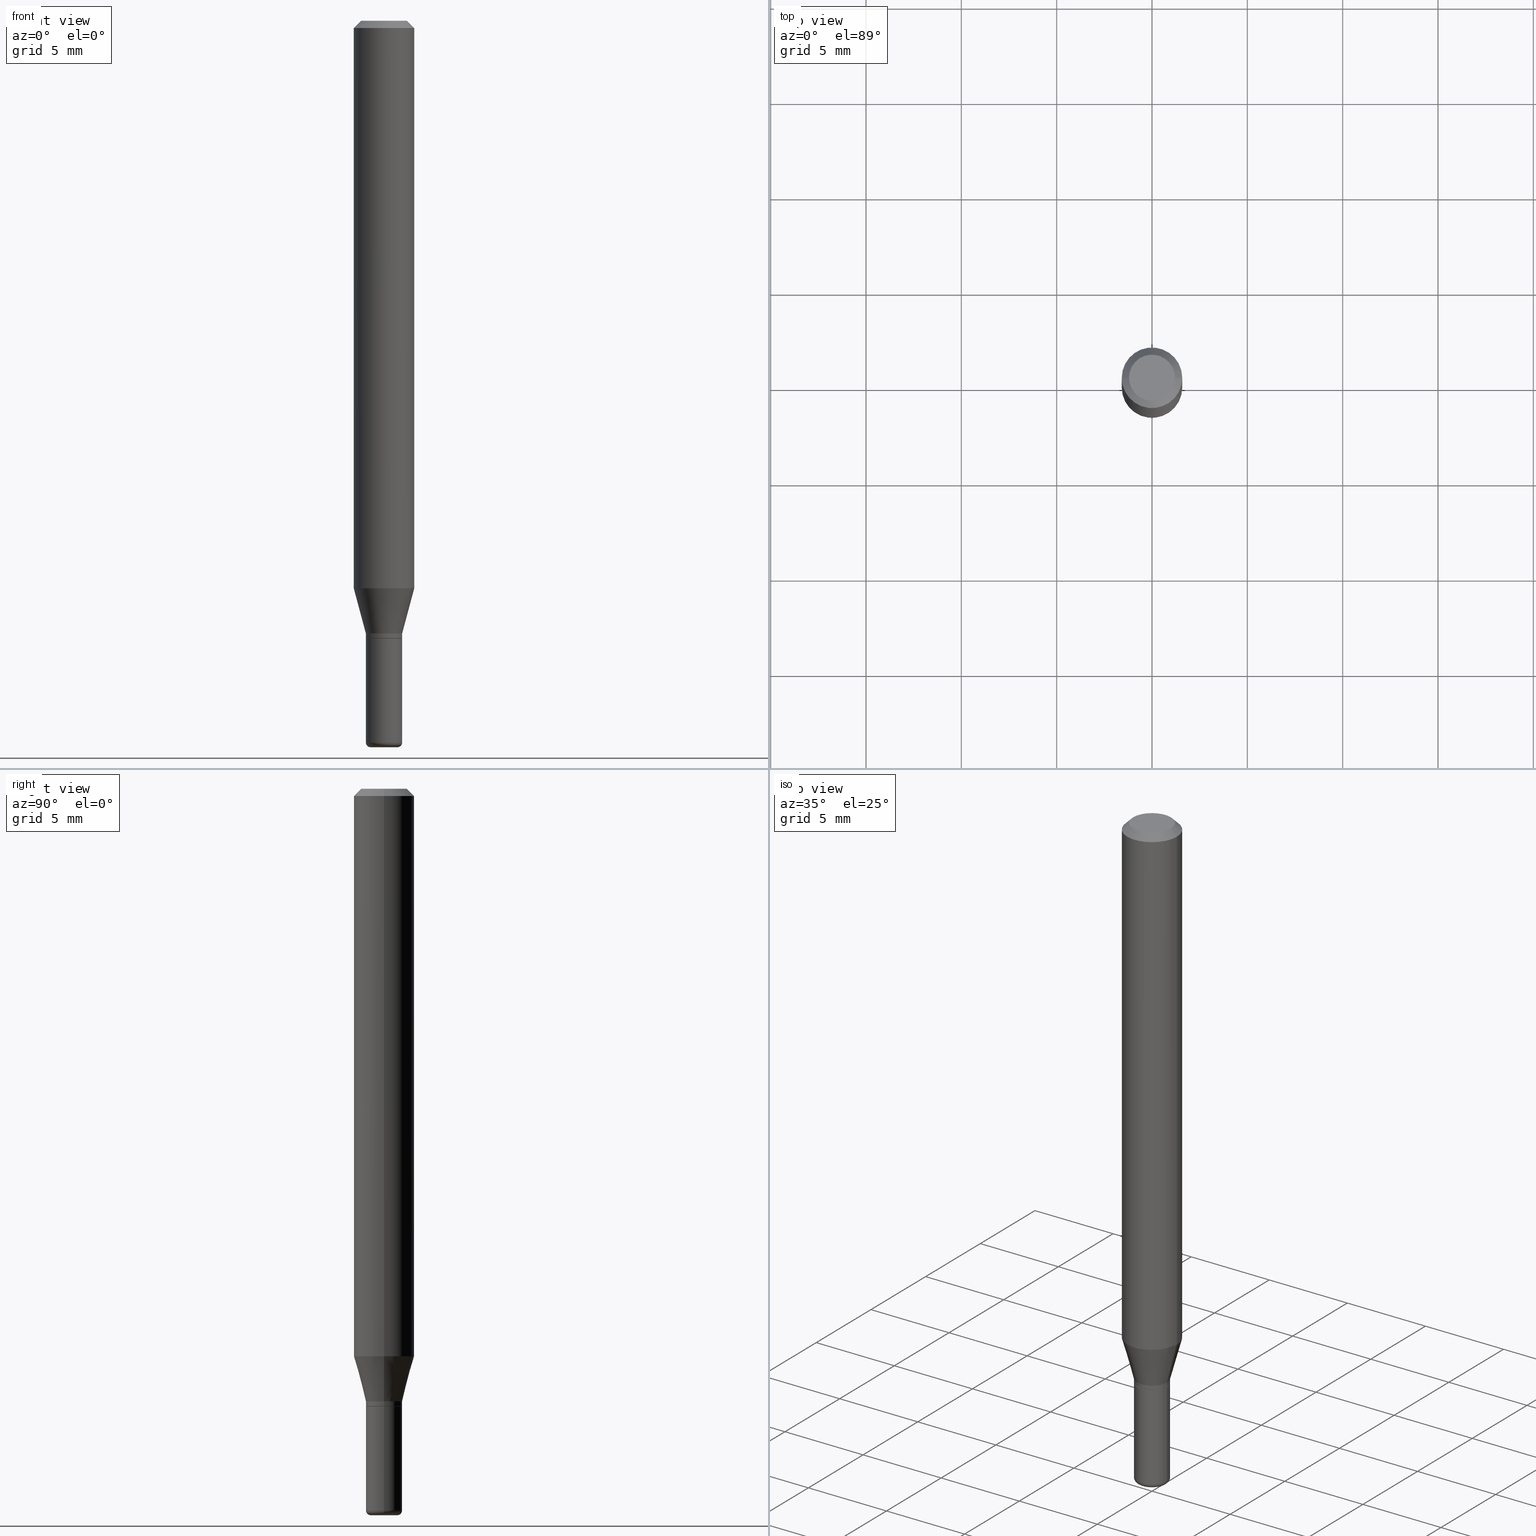
[diagram: canonical four-view strip — front | top / right | iso, engineering-drawing reading convention]
A machine part, canonical four-view strip (front | top / right | iso — engineering-drawing reading convention). The complete STEP part file that produces these views, byte-faithful:
ISO-10303-21;
HEADER;
FILE_DESCRIPTION (( 'STEP AP203' ),
    '1' );
FILE_NAME ('09179.STEP',
    '2024-02-29T23:03:01',
    ( '' ),
    ( '' ),
    'SwSTEP 2.0',
    'SolidWorks 2023',
    '' );
FILE_SCHEMA (( 'CONFIG_CONTROL_DESIGN' ));
ENDSEC;

DATA;
#1 = ORIENTED_EDGE ( 'NONE', *, *, #312, .T. ) ;
#2 = LINE ( 'NONE', #164, #67 ) ;
#3 = TOROIDAL_SURFACE ( 'NONE', #62, 0.02749999999999999667, 0.009999999999999948166 ) ;
#4 = CC_DESIGN_PERSON_AND_ORGANIZATION_ASSIGNMENT ( #388, #508, ( #225 ) ) ;
#5 = CARTESIAN_POINT ( 'NONE',  ( 3.668203209277632395E-31, -5.237222008264614861E-17, -0.01499999999999970281 ) ) ;
#6 = ORIENTED_EDGE ( 'NONE', *, *, #298, .F. ) ;
#7 = ORIENTED_EDGE ( 'NONE', *, *, #274, .F. ) ;
#8 = CARTESIAN_POINT ( 'NONE',  ( 0.03749999999999999861, -4.713499807438246596E-15, -1.275000000000000133 ) ) ;
#9 = DIRECTION ( 'NONE',  ( 1.000000000000000000, -6.982962677686259611E-15, 0.000000000000000000 ) ) ;
#10 = ORIENTED_EDGE ( 'NONE', *, *, #312, .F. ) ;
#11 = CARTESIAN_POINT ( 'NONE',  ( 0.000000000000000000, 0.000000000000000000, 0.000000000000000000 ) ) ;
#12 = EDGE_LOOP ( 'NONE', ( #493, #238, #466, #167 ) ) ;
#13 = EDGE_CURVE ( 'NONE', #273, #473, #270, .T. ) ;
#14 = CARTESIAN_POINT ( 'NONE',  ( 3.117972727886049049E-29, -4.451638707025011594E-15, -1.275000000000000133 ) ) ;
#15 = LINE ( 'NONE', #177, #276 ) ;
#16 = DIRECTION ( 'NONE',  ( 1.000000000000000000, -6.982962677686265922E-15, 4.876176775795935793E-29 ) ) ;
#17 = CONICAL_SURFACE ( 'NONE', #308, 0.03749999999999995698, 0.2617993877991495189 ) ;
#18 = DIRECTION ( 'NONE',  ( -2.445468806185136877E-29, 3.491481338843145188E-15, 1.000000000000000000 ) ) ;
#19 = EDGE_CURVE ( 'NONE', #349, #473, #350, .T. ) ;
#20 = CARTESIAN_POINT ( 'NONE',  ( 2.618611004132661617E-16, 0.03749999999999554384, -1.275000000000000133 ) ) ;
#21 = PERSON_AND_ORGANIZATION ( #490, #309 ) ;
#22 = DIRECTION ( 'NONE',  ( 2.438088387897960049E-29, -3.491481338843145188E-15, -1.000000000000000000 ) ) ;
#23 = CONICAL_SURFACE ( 'NONE', #460, 0.06250000000000000000, 0.7853981633974488341 ) ;
#24 = AXIS2_PLACEMENT_3D ( 'NONE', #123, #392, #440 ) ;
#25 = DIRECTION ( 'NONE',  ( -2.445468806185136597E-29, 3.491481338843145583E-15, 1.000000000000000000 ) ) ;
#26 = PERSON_AND_ORGANIZATION_ROLE ( 'design_supplier' ) ;
#27 = COORDINATED_UNIVERSAL_TIME_OFFSET ( 5, 0, .BEHIND. ) ;
#28 = FACE_OUTER_BOUND ( 'NONE', #278, .T. ) ;
#29 = ORIENTED_EDGE ( 'NONE', *, *, #373, .F. ) ;
#30 = CARTESIAN_POINT ( 'NONE',  ( -0.03749999999999997086, -4.183439440445552679E-15, -1.274500000000000188 ) ) ;
#31 = DIRECTION ( 'NONE',  ( 1.000000000000000000, -6.982962677686266711E-15, 4.876176775795935793E-29 ) ) ;
#32 = AXIS2_PLACEMENT_3D ( 'NONE', #327, #294, #424 ) ;
#33 = EDGE_LOOP ( 'NONE', ( #234, #319, #404, #93 ) ) ;
#34 = EDGE_CURVE ( 'NONE', #410, #451, #80, .T. ) ;
#35 = DIRECTION ( 'NONE',  ( 1.000000000000000000, -6.982962677686273810E-15, 0.000000000000000000 ) ) ;
#36 = DIRECTION ( 'NONE',  ( 1.000000000000000000, -6.982962677686276177E-15, 0.000000000000000000 ) ) ;
#37 = VERTEX_POINT ( 'NONE', #286 ) ;
#38 = CARTESIAN_POINT ( 'NONE',  ( 3.668203209277632395E-31, -5.237222008264614861E-17, -0.01499999999999970281 ) ) ;
#39 = LINE ( 'NONE', #515, #333 ) ;
#40 = EDGE_LOOP ( 'NONE', ( #174, #391, #109, #133 ) ) ;
#41 = ORIENTED_EDGE ( 'NONE', *, *, #352, .F. ) ;
#42 = CARTESIAN_POINT ( 'NONE',  ( -0.06250000000000000000, 4.440892098500626162E-16, -3.074334431409316114E-30 ) ) ;
#43 = ORIENTED_EDGE ( 'NONE', *, *, #90, .T. ) ;
#44 = CIRCLE ( 'NONE', #387, 0.03749999999999995698 ) ;
#45 = SHAPE_DEFINITION_REPRESENTATION ( #324, #182 ) ;
#46 = DIRECTION ( 'NONE',  ( 1.000000000000000000, -6.982962677686266711E-15, 0.000000000000000000 ) ) ;
#47 = CARTESIAN_POINT ( 'NONE',  ( 0.000000000000000000, 0.000000000000000000, 0.000000000000000000 ) ) ;
#48 = CARTESIAN_POINT ( 'NONE',  ( -6.680649051745406845E-45, 9.538196290434862081E-31, 2.731847993664263218E-16 ) ) ;
#49 = CLOSED_SHELL ( 'NONE', ( #100, #385, #111, #496, #130, #68, #192, #150, #439, #371, #405, #479 ) ) ;
#50 = CIRCLE ( 'NONE', #24, 0.009999999999999948166 ) ;
#51 = APPROVAL_PERSON_ORGANIZATION ( #21, #464, #268 ) ;
#52 = EDGE_CURVE ( 'NONE', #349, #511, #247, .T. ) ;
#53 = ORIENTED_EDGE ( 'NONE', *, *, #52, .T. ) ;
#54 = DIRECTION ( 'NONE',  ( -2.445468806185136597E-29, 3.491481338843145583E-15, 1.000000000000000000 ) ) ;
#55 = FACE_OUTER_BOUND ( 'NONE', #353, .T. ) ;
#56 = CYLINDRICAL_SURFACE ( 'NONE', #236, 0.06250000000000000000 ) ;
#57 = CARTESIAN_POINT ( 'NONE',  ( 0.000000000000000000, 0.000000000000000000, 0.000000000000000000 ) ) ;
#58 = EDGE_CURVE ( 'NONE', #363, #471, #509, .T. ) ;
#59 = DATE_AND_TIME ( #65, #340 ) ;
#60 = AXIS2_PLACEMENT_3D ( 'NONE', #303, #63, #229 ) ;
#61 = DIRECTION ( 'NONE',  ( -2.445468806185136597E-29, 3.491481338843145583E-15, 1.000000000000000000 ) ) ;
#62 = AXIS2_PLACEMENT_3D ( 'NONE', #499, #334, #291 ) ;
#63 = DIRECTION ( 'NONE',  ( -2.445468806185136597E-29, 3.491481338843145583E-15, 1.000000000000000000 ) ) ;
#64 = LOCAL_TIME ( 18, 3, 1.000000000000000000, #316 ) ;
#65 = CALENDAR_DATE ( 2024, 29, 2 ) ;
#66 = DIRECTION ( 'NONE',  ( 1.000000000000000000, -6.982962677686266711E-15, 4.852736867747365086E-29 ) ) ;
#67 = VECTOR ( 'NONE', #320, 39.37007874015748854 ) ;
#68 = ADVANCED_FACE ( 'NONE', ( #456 ), #282, .T. ) ;
#69 = DIRECTION ( 'NONE',  ( 1.000000000000000000, -6.982962677686266711E-15, 4.852736867747365086E-29 ) ) ;
#70 = APPROVAL_STATUS ( 'not_yet_approved' ) ;
#71 = DIRECTION ( 'NONE',  ( -2.445468806185136877E-29, 3.491481338843145188E-15, 1.000000000000000000 ) ) ;
#72 = VERTEX_POINT ( 'NONE', #383 ) ;
#73 = ORIENTED_EDGE ( 'NONE', *, *, #248, .T. ) ;
#74 = ADVANCED_FACE ( 'NONE', ( #502 ), #144, .F. ) ;
#75 = EDGE_LOOP ( 'NONE', ( #199, #323, #87, #447 ) ) ;
#76 = APPROVAL_PERSON_ORGANIZATION ( #187, #345, #459 ) ;
#77 = EDGE_LOOP ( 'NONE', ( #250, #73, #329, #136 ) ) ;
#78 = MANIFOLD_SOLID_BREP ( 'Body-Move/Copy2[2]', #49 ) ;
#79 = CARTESIAN_POINT ( 'NONE',  ( 0.03749999999999997086, -4.711754066768825092E-15, -1.274500000000000188 ) ) ;
#80 = LINE ( 'NONE', #348, #406 ) ;
#81 = ORIENTED_EDGE ( 'NONE', *, *, #34, .F. ) ;
#82 = CARTESIAN_POINT ( 'NONE',  ( 3.117972727886049049E-29, -4.451638707025011594E-15, -1.275000000000000133 ) ) ;
#83 = ORIENTED_EDGE ( 'NONE', *, *, #171, .F. ) ;
#84 = FACE_OUTER_BOUND ( 'NONE', #259, .T. ) ;
#85 = AXIS2_PLACEMENT_3D ( 'NONE', #246, #472, #437 ) ;
#86 = DIRECTION ( 'NONE',  ( 1.000000000000000000, -6.982962677686279332E-15, 0.000000000000000000 ) ) ;
#87 = ORIENTED_EDGE ( 'NONE', *, *, #240, .F. ) ;
#88 = DIRECTION ( 'NONE',  ( -2.438088387897960049E-29, 3.491481338843145188E-15, 1.000000000000000000 ) ) ;
#89 = ORIENTED_EDGE ( 'NONE', *, *, #185, .F. ) ;
#90 = EDGE_CURVE ( 'NONE', #367, #315, #126, .T. ) ;
#91 = FACE_OUTER_BOUND ( 'NONE', #193, .T. ) ;
#92 = EDGE_CURVE ( 'NONE', #486, #402, #342, .T. ) ;
#93 = ORIENTED_EDGE ( 'NONE', *, *, #184, .F. ) ;
#94 = AXIS2_PLACEMENT_3D ( 'NONE', #117, #393, #36 ) ;
#95 = CIRCLE ( 'NONE', #379, 0.06250000000000000000 ) ;
#96 = FACE_OUTER_BOUND ( 'NONE', #40, .T. ) ;
#97 = LINE ( 'NONE', #212, #427 ) ;
#98 = CARTESIAN_POINT ( 'NONE',  ( 0.03749999999999994310, -5.464168295289523107E-15, -1.490000000000000213 ) ) ;
#99 = DIRECTION ( 'NONE',  ( -1.000000000000000000, 6.982962677686265922E-15, -4.876176775795935793E-29 ) ) ;
#100 = ADVANCED_FACE ( 'NONE', ( #55 ), #220, .T. ) ;
#101 = PERSON_AND_ORGANIZATION ( #490, #309 ) ;
#102 = DIRECTION ( 'NONE',  ( -2.445468806185136597E-29, 3.491481338843145583E-15, 1.000000000000000000 ) ) ;
#103 = COORDINATED_UNIVERSAL_TIME_OFFSET ( 5, 0, .BEHIND. ) ;
#104 = AXIS2_PLACEMENT_3D ( 'NONE', #428, #482, #69 ) ;
#105 =( LENGTH_UNIT ( ) NAMED_UNIT ( * ) SI_UNIT ( $, .METRE. ) );
#106 = CC_DESIGN_PERSON_AND_ORGANIZATION_ASSIGNMENT ( #143, #299, ( #159 ) ) ;
#107 = COORDINATED_UNIVERSAL_TIME_OFFSET ( 5, 0, .BEHIND. ) ;
#108 = CIRCLE ( 'NONE', #400, 0.02750000000000000014 ) ;
#109 = ORIENTED_EDGE ( 'NONE', *, *, #13, .T. ) ;
#110 = FACE_OUTER_BOUND ( 'NONE', #355, .T. ) ;
#111 = ADVANCED_FACE ( 'NONE', ( #500 ), #23, .T. ) ;
#112 = VERTEX_POINT ( 'NONE', #417 ) ;
#113 = DIRECTION ( 'NONE',  ( -2.445468806185136597E-29, 3.491481338843145583E-15, 1.000000000000000000 ) ) ;
#114 = ORIENTED_EDGE ( 'NONE', *, *, #257, .F. ) ;
#115 = APPROVAL ( #70, 'UNSPECIFIED' ) ;
#116 = PLANE ( 'NONE',  #443 ) ;
#117 = CARTESIAN_POINT ( 'NONE',  ( 3.093518039824198064E-29, -4.416723893636579156E-15, -1.265000000000000124 ) ) ;
#118 = CIRCLE ( 'NONE', #104, 0.04750000000000000749 ) ;
#119 = SECURITY_CLASSIFICATION ( '', '', #189 ) ;
#120 = ORIENTED_EDGE ( 'NONE', *, *, #462, .T. ) ;
#121 = CARTESIAN_POINT ( 'NONE',  ( 0.03699999999999997041, -4.710008326099402800E-15, -1.275000000000000133 ) ) ;
#122 = DIRECTION ( 'NONE',  ( 1.000000000000000000, -6.982962677686272233E-15, 0.000000000000000000 ) ) ;
#123 = CARTESIAN_POINT ( 'NONE',  ( -0.02749999999999999667, -5.006907942542259986E-15, -1.490000000000000213 ) ) ;
#124 = VERTEX_POINT ( 'NONE', #30 ) ;
#125 = CARTESIAN_POINT ( 'NONE',  ( -0.03749999999999997086, 2.664535259100373626E-16, -1.844600658845588407E-30 ) ) ;
#126 = CIRCLE ( 'NONE', #418, 0.03699999999999997041 ) ;
#127 = CIRCLE ( 'NONE', #419, 0.03699999999999997041 ) ;
#128 = CARTESIAN_POINT ( 'NONE',  ( 0.03699999999999997041, -4.710008326099402800E-15, -1.275000000000000133 ) ) ;
#129 = ORIENTED_EDGE ( 'NONE', *, *, #298, .T. ) ;
#130 = ADVANCED_FACE ( 'NONE', ( #28 ), #17, .T. ) ;
#131 = DIMENSIONAL_EXPONENTS ( 1.000000000000000000, 0.000000000000000000, 0.000000000000000000, 0.000000000000000000, 0.000000000000000000, 0.000000000000000000, 0.000000000000000000 ) ;
#132 = CYLINDRICAL_SURFACE ( 'NONE', #231, 0.03749999999999997086 ) ;
#133 = ORIENTED_EDGE ( 'NONE', *, *, #19, .F. ) ;
#134 = CC_DESIGN_PERSON_AND_ORGANIZATION_ASSIGNMENT ( #101, #301, ( #343 ) ) ;
#135 = LINE ( 'NONE', #128, #512 ) ;
#136 = ORIENTED_EDGE ( 'NONE', *, *, #92, .F. ) ;
#137 = VECTOR ( 'NONE', #71, 39.37007874015748143 ) ;
#138 = AXIS2_PLACEMENT_3D ( 'NONE', #513, #244, #35 ) ;
#139 = CC_DESIGN_APPROVAL ( #115, ( #119 ) ) ;
#140 = CYLINDRICAL_SURFACE ( 'NONE', #444, 0.03749999999999996392 ) ;
#141 = CARTESIAN_POINT ( 'NONE',  ( 0.000000000000000000, 0.000000000000000000, 0.000000000000000000 ) ) ;
#142 = CARTESIAN_POINT ( 'NONE',  ( 3.668203209277632395E-31, -5.237222008264614861E-17, -0.01499999999999970281 ) ) ;
#143 = PERSON_AND_ORGANIZATION ( #490, #309 ) ;
#144 = PLANE ( 'NONE',  #186 ) ;
#145 = PERSON_AND_ORGANIZATION ( #490, #309 ) ;
#146 = AXIS2_PLACEMENT_3D ( 'NONE', #396, #200, #211 ) ;
#147 = EDGE_CURVE ( 'NONE', #37, #486, #275, .T. ) ;
#148 = COORDINATED_UNIVERSAL_TIME_OFFSET ( 5, 0, .BEHIND. ) ;
#149 = MECHANICAL_CONTEXT ( 'NONE', #206, 'mechanical' ) ;
#150 = ADVANCED_FACE ( 'NONE', ( #190 ), #235, .T. ) ;
#151 = VECTOR ( 'NONE', #281, 39.37007874015748143 ) ;
#152 = ORIENTED_EDGE ( 'NONE', *, *, #58, .T. ) ;
#153 = DIRECTION ( 'NONE',  ( 1.000000000000000000, -6.982962677686276177E-15, 0.000000000000000000 ) ) ;
#154 = DIRECTION ( 'NONE',  ( 1.000000000000000000, -6.982962677686266711E-15, 4.876176775795935793E-29 ) ) ;
#155 = EDGE_LOOP ( 'NONE', ( #484, #163, #310, #158 ) ) ;
#156 = ORIENTED_EDGE ( 'NONE', *, *, #290, .T. ) ;
#157 = CARTESIAN_POINT ( 'NONE',  ( -0.04750000000000000749, 3.578768372314221353E-16, 2.731847993664239060E-16 ) ) ;
#158 = ORIENTED_EDGE ( 'NONE', *, *, #330, .F. ) ;
#159 = PRODUCT ( '09179', '09179', '', ( #149 ) ) ;
#160 = DIRECTION ( 'NONE',  ( 2.445468806185136597E-29, -3.491481338843145583E-15, -1.000000000000000000 ) ) ;
#161 = DIRECTION ( 'NONE',  ( 1.000000000000000000, -6.982962677686265922E-15, 4.876176775795935793E-29 ) ) ;
#162 = AXIS2_PLACEMENT_3D ( 'NONE', #411, #217, #9 ) ;
#163 = ORIENTED_EDGE ( 'NONE', *, *, #19, .T. ) ;
#164 = CARTESIAN_POINT ( 'NONE',  ( 0.03749999999999995698, -4.678584994049814158E-15, -1.265000000000000124 ) ) ;
#165 = EDGE_CURVE ( 'NONE', #473, #410, #2, .T. ) ;
#166 = DIRECTION ( 'NONE',  ( 1.000000000000000000, -6.982962677686262766E-15, 0.000000000000000000 ) ) ;
#167 = ORIENTED_EDGE ( 'NONE', *, *, #352, .T. ) ;
#168 = FACE_OUTER_BOUND ( 'NONE', #468, .T. ) ;
#169 = CARTESIAN_POINT ( 'NONE',  ( 0.000000000000000000, 0.000000000000000000, 0.000000000000000000 ) ) ;
#170 = DIRECTION ( 'NONE',  ( -2.445468806185136597E-29, 3.491481338843145583E-15, 1.000000000000000000 ) ) ;
#171 = EDGE_CURVE ( 'NONE', #471, #363, #118, .T. ) ;
#172 = VECTOR ( 'NONE', #354, 39.37007874015748143 ) ;
#173 = FACE_OUTER_BOUND ( 'NONE', #33, .T. ) ;
#174 = ORIENTED_EDGE ( 'NONE', *, *, #503, .F. ) ;
#175 = DIRECTION ( 'NONE',  ( 1.000000000000000000, -6.982962677686278543E-15, 0.000000000000000000 ) ) ;
#176 = DIRECTION ( 'NONE',  ( 1.000000000000000000, -6.982962677686266711E-15, 4.876176775795935793E-29 ) ) ;
#177 = CARTESIAN_POINT ( 'NONE',  ( 0.06250000000000000000, -4.811533449433669144E-16, -0.01499999999999970281 ) ) ;
#178 =( GEOMETRIC_REPRESENTATION_CONTEXT ( 3 ) GLOBAL_UNCERTAINTY_ASSIGNED_CONTEXT ( ( #280 ) ) GLOBAL_UNIT_ASSIGNED_CONTEXT ( ( #421, #181, #266 ) ) REPRESENTATION_CONTEXT ( 'NONE', 'WORKASPACE' ) );
#179 = CARTESIAN_POINT ( 'NONE',  ( 3.643748521215853910E-29, -5.202307194876288105E-15, -1.490000000000000213 ) ) ;
#180 = DIRECTION ( 'NONE',  ( -2.445468806185136597E-29, 3.491481338843145583E-15, 1.000000000000000000 ) ) ;
#181 =( NAMED_UNIT ( * ) PLANE_ANGLE_UNIT ( ) SI_UNIT ( $, .RADIAN. ) );
#182 = ADVANCED_BREP_SHAPE_REPRESENTATION ( '09179', ( #422, #78, #461 ), #178 ) ;
#183 = PERSON_AND_ORGANIZATION ( #490, #309 ) ;
#184 = EDGE_CURVE ( 'NONE', #112, #402, #196, .T. ) ;
#185 = EDGE_CURVE ( 'NONE', #390, #486, #300, .T. ) ;
#186 = AXIS2_PLACEMENT_3D ( 'NONE', #20, #22, #99 ) ;
#187 = PERSON_AND_ORGANIZATION ( #490, #309 ) ;
#188 = AXIS2_PLACEMENT_3D ( 'NONE', #207, #361, #86 ) ;
#189 = SECURITY_CLASSIFICATION_LEVEL ( 'unclassified' ) ;
#190 = FACE_OUTER_BOUND ( 'NONE', #12, .T. ) ;
#191 = APPROVAL_ROLE ( '' ) ;
#192 = ADVANCED_FACE ( 'NONE', ( #110 ), #271, .T. ) ;
#193 = EDGE_LOOP ( 'NONE', ( #1, #389, #432, #434 ) ) ;
#194 = ORIENTED_EDGE ( 'NONE', *, *, #34, .T. ) ;
#195 = CALENDAR_DATE ( 2024, 29, 2 ) ;
#196 = CIRCLE ( 'NONE', #216, 0.03749999999999999861 ) ;
#197 = CIRCLE ( 'NONE', #510, 0.03749999999999997086 ) ;
#198 = ORIENTED_EDGE ( 'NONE', *, *, #213, .T. ) ;
#199 = ORIENTED_EDGE ( 'NONE', *, *, #448, .T. ) ;
#200 = DIRECTION ( 'NONE',  ( -2.445468806185136597E-29, 3.491481338843145583E-15, 1.000000000000000000 ) ) ;
#201 = ORIENTED_EDGE ( 'NONE', *, *, #165, .F. ) ;
#202 = APPROVAL_DATE_TIME ( #478, #115 ) ;
#203 = CARTESIAN_POINT ( 'NONE',  ( 2.865352693999004031E-29, -4.090964249880548061E-15, -1.171698729810777939 ) ) ;
#204 = EDGE_CURVE ( 'NONE', #492, #390, #50, .T. ) ;
#205 = EDGE_LOOP ( 'NONE', ( #83, #375, #441, #292 ) ) ;
#206 = APPLICATION_CONTEXT ( 'configuration controlled 3d designs of mechanical parts and assemblies' ) ;
#207 = CARTESIAN_POINT ( 'NONE',  ( 3.668203209277704895E-29, -5.237222008264718177E-15, -1.500000000000000222 ) ) ;
#208 = VECTOR ( 'NONE', #214, 39.37007874015748143 ) ;
#209 = LOCAL_TIME ( 18, 3, 1.000000000000000000, #107 ) ;
#210 = EDGE_LOOP ( 'NONE', ( #398, #43, #120, #7 ) ) ;
#211 = DIRECTION ( 'NONE',  ( 1.000000000000000000, -6.982962677686278543E-15, 4.883557194083116825E-29 ) ) ;
#212 = CARTESIAN_POINT ( 'NONE',  ( -0.03749999999999996392, 2.664535259100373133E-16, -1.844600658845587706E-30 ) ) ;
#213 = EDGE_CURVE ( 'NONE', #410, #511, #339, .T. ) ;
#214 = DIRECTION ( 'NONE',  ( -0.7071067811865479058, 2.468850131082261005E-15, -0.7071067811865471286 ) ) ;
#215 = CC_DESIGN_DATE_AND_TIME_ASSIGNMENT ( #337, #429, ( #119 ) ) ;
#216 = AXIS2_PLACEMENT_3D ( 'NONE', #232, #487, #251 ) ;
#217 = DIRECTION ( 'NONE',  ( -2.445468806185136597E-29, 3.491481338843145583E-15, 1.000000000000000000 ) ) ;
#218 = ORIENTED_EDGE ( 'NONE', *, *, #204, .F. ) ;
#219 = DIRECTION ( 'NONE',  ( -2.445468806185136597E-29, 3.491481338843145583E-15, 1.000000000000000000 ) ) ;
#220 = CYLINDRICAL_SURFACE ( 'NONE', #253, 0.03749999999999996392 ) ;
#221 = EDGE_CURVE ( 'NONE', #363, #72, #321, .T. ) ;
#222 = CARTESIAN_POINT ( 'NONE',  ( -0.03749999999999994310, -4.560519425040611649E-15, -1.490000000000000213 ) ) ;
#223 = CIRCLE ( 'NONE', #325, 0.03749999999999994310 ) ;
#224 = CALENDAR_DATE ( 2024, 29, 2 ) ;
#225 = PRODUCT_DEFINITION_FORMATION_WITH_SPECIFIED_SOURCE ( 'ANY', '', #159, .NOT_KNOWN. ) ;
#226 = DIRECTION ( 'NONE',  ( 1.000000000000000000, -6.982962677686259611E-15, 0.000000000000000000 ) ) ;
#227 = ADVANCED_FACE ( 'NONE', ( #168 ), #394, .F. ) ;
#228 = DIRECTION ( 'NONE',  ( 0.000000000000000000, 0.000000000000000000, 1.000000000000000000 ) ) ;
#229 = DIRECTION ( 'NONE',  ( 1.000000000000000000, -6.982962677686276177E-15, 0.000000000000000000 ) ) ;
#230 = APPROVAL_DATE_TIME ( #59, #464 ) ;
#231 = AXIS2_PLACEMENT_3D ( 'NONE', #11, #328, #176 ) ;
#232 = CARTESIAN_POINT ( 'NONE',  ( 3.117972727886049049E-29, -4.451638707025011594E-15, -1.275000000000000133 ) ) ;
#233 = DIRECTION ( 'NONE',  ( -2.445468806185136877E-29, 3.491481338843145188E-15, 1.000000000000000000 ) ) ;
#234 = ORIENTED_EDGE ( 'NONE', *, *, #248, .F. ) ;
#235 = CONICAL_SURFACE ( 'NONE', #498, 0.06250000000000000000, 0.7853981633974488341 ) ;
#236 = AXIS2_PLACEMENT_3D ( 'NONE', #169, #288, #454 ) ;
#237 = DIRECTION ( 'NONE',  ( 1.000000000000000000, -6.982962677686262766E-15, 0.000000000000000000 ) ) ;
#238 = ORIENTED_EDGE ( 'NONE', *, *, #58, .F. ) ;
#239 = DIRECTION ( 'NONE',  ( -6.982962677686266711E-15, -1.000000000000000000, 3.491481338843145583E-15 ) ) ;
#240 = EDGE_CURVE ( 'NONE', #273, #124, #489, .T. ) ;
#241 = DIRECTION ( 'NONE',  ( -0.7071067811866199593, 7.493145998870616062E-15, 0.7071067811864750752 ) ) ;
#242 = ADVANCED_FACE ( 'NONE', ( #84 ), #408, .T. ) ;
#243 = ORIENTED_EDGE ( 'NONE', *, *, #330, .T. ) ;
#244 = DIRECTION ( 'NONE',  ( -2.445468806185136597E-29, 3.491481338843145583E-15, 1.000000000000000000 ) ) ;
#245 = ORIENTED_EDGE ( 'NONE', *, *, #377, .F. ) ;
#246 = CARTESIAN_POINT ( 'NONE',  ( 3.668203209277632395E-31, -5.237222008264614861E-17, -0.01499999999999970281 ) ) ;
#247 = LINE ( 'NONE', #446, #338 ) ;
#248 = EDGE_CURVE ( 'NONE', #390, #112, #318, .T. ) ;
#249 = DIRECTION ( 'NONE',  ( -2.445468806185136597E-29, 3.491481338843145583E-15, 1.000000000000000000 ) ) ;
#250 = ORIENTED_EDGE ( 'NONE', *, *, #423, .T. ) ;
#251 = DIRECTION ( 'NONE',  ( 1.000000000000000000, -6.982962677686268288E-15, 0.000000000000000000 ) ) ;
#252 = FACE_OUTER_BOUND ( 'NONE', #495, .T. ) ;
#253 = AXIS2_PLACEMENT_3D ( 'NONE', #57, #180, #335 ) ;
#254 = AXIS2_PLACEMENT_3D ( 'NONE', #47, #401, #154 ) ;
#255 = LOCAL_TIME ( 18, 3, 1.000000000000000000, #103 ) ;
#256 = CARTESIAN_POINT ( 'NONE',  ( 3.093518039824198064E-29, -4.416723893636579156E-15, -1.265000000000000124 ) ) ;
#257 = EDGE_CURVE ( 'NONE', #451, #72, #477, .T. ) ;
#258 = APPLICATION_CONTEXT ( 'configuration controlled 3d designs of mechanical parts and assemblies' ) ;
#259 = EDGE_LOOP ( 'NONE', ( #218, #438, #313, #89 ) ) ;
#260 = CARTESIAN_POINT ( 'NONE',  ( -0.06250000000000000000, -3.646875040030485445E-15, -1.171698729810777939 ) ) ;
#261 = FACE_OUTER_BOUND ( 'NONE', #470, .T. ) ;
#262 = CARTESIAN_POINT ( 'NONE',  ( 3.117972727886049049E-29, -4.451638707025011594E-15, -1.275000000000000133 ) ) ;
#263 = DIRECTION ( 'NONE',  ( -1.000000000000000000, 6.982962677686266711E-15, 0.000000000000000000 ) ) ;
#264 = AXIS2_PLACEMENT_3D ( 'NONE', #82, #442, #433 ) ;
#265 = ADVANCED_FACE ( 'NONE', ( #311 ), #322, .T. ) ;
#266 =( NAMED_UNIT ( * ) SI_UNIT ( $, .STERADIAN. ) SOLID_ANGLE_UNIT ( ) );
#267 = DESIGN_CONTEXT ( 'detailed design', #258, 'design' ) ;
#268 = APPROVAL_ROLE ( '' ) ;
#269 = AXIS2_PLACEMENT_3D ( 'NONE', #384, #25, #31 ) ;
#270 = LINE ( 'NONE', #475, #137 ) ;
#271 = CYLINDRICAL_SURFACE ( 'NONE', #269, 0.06250000000000000000 ) ;
#272 = DIRECTION ( 'NONE',  ( 1.000000000000000000, -6.982962677686273810E-15, 0.000000000000000000 ) ) ;
#273 = VERTEX_POINT ( 'NONE', #79 ) ;
#274 = EDGE_CURVE ( 'NONE', #124, #273, #197, .T. ) ;
#275 = CIRCLE ( 'NONE', #293, 0.009999999999999948166 ) ;
#276 = VECTOR ( 'NONE', #364, 39.37007874015748143 ) ;
#277 = DIRECTION ( 'NONE',  ( -2.438088387897960049E-29, 3.491481338843145188E-15, 1.000000000000000000 ) ) ;
#278 = EDGE_LOOP ( 'NONE', ( #481, #53, #326, #201 ) ) ;
#279 = CARTESIAN_POINT ( 'NONE',  ( 3.117972727886049049E-29, -4.451638707025011594E-15, -1.275000000000000133 ) ) ;
#280 = UNCERTAINTY_MEASURE_WITH_UNIT (LENGTH_MEASURE( 1.000000000000000082E-05 ), #421, 'distance_accuracy_value', 'NONE');
#281 = DIRECTION ( 'NONE',  ( -2.445468806185136877E-29, 3.491481338843145188E-15, 1.000000000000000000 ) ) ;
#282 = CONICAL_SURFACE ( 'NONE', #60, 0.03749999999999995698, 0.2617993877991495189 ) ;
#283 = CONICAL_SURFACE ( 'NONE', #505, 0.03699999999999997041, 0.7853981633975507526 ) ;
#284 = CC_DESIGN_APPROVAL ( #464, ( #225 ) ) ;
#285 = ORIENTED_EDGE ( 'NONE', *, *, #184, .T. ) ;
#286 = CARTESIAN_POINT ( 'NONE',  ( 0.02750000000000000014, -5.429253481901091458E-15, -1.500000000000000222 ) ) ;
#287 = ORIENTED_EDGE ( 'NONE', *, *, #448, .F. ) ;
#288 = DIRECTION ( 'NONE',  ( -2.445468806185136597E-29, 3.491481338843145583E-15, 1.000000000000000000 ) ) ;
#289 = DIRECTION ( 'NONE',  ( 1.000000000000000000, -6.982962677686259611E-15, 0.000000000000000000 ) ) ;
#290 = EDGE_CURVE ( 'NONE', #402, #112, #317, .T. ) ;
#291 = DIRECTION ( 'NONE',  ( 1.000000000000000000, -6.982962677686278543E-15, 4.883557194083116825E-29 ) ) ;
#292 = ORIENTED_EDGE ( 'NONE', *, *, #221, .F. ) ;
#293 = AXIS2_PLACEMENT_3D ( 'NONE', #435, #239, #122 ) ;
#294 = DIRECTION ( 'NONE',  ( -2.445468806185136597E-29, 3.491481338843145583E-15, 1.000000000000000000 ) ) ;
#295 = DIRECTION ( 'NONE',  ( 1.000000000000000000, -6.982962677686266711E-15, 4.876176775795935793E-29 ) ) ;
#296 = CARTESIAN_POINT ( 'NONE',  ( 3.316907271900976589E-16, 0.04750000000000000749, -2.925296391183627249E-17 ) ) ;
#297 = DIRECTION ( 'NONE',  ( 2.445468806185136597E-29, -3.491481338843145583E-15, -1.000000000000000000 ) ) ;
#298 = EDGE_CURVE ( 'NONE', #511, #72, #480, .T. ) ;
#299 = PERSON_AND_ORGANIZATION_ROLE ( 'design_owner' ) ;
#300 = CIRCLE ( 'NONE', #32, 0.03749999999999994310 ) ;
#301 = PERSON_AND_ORGANIZATION_ROLE ( 'creator' ) ;
#302 = CALENDAR_DATE ( 2024, 29, 2 ) ;
#303 = CARTESIAN_POINT ( 'NONE',  ( 3.093518039824198064E-29, -4.416723893636579156E-15, -1.265000000000000124 ) ) ;
#304 = PERSON_AND_ORGANIZATION ( #490, #309 ) ;
#305 = EDGE_CURVE ( 'NONE', #367, #124, #39, .T. ) ;
#306 = EDGE_LOOP ( 'NONE', ( #287, #431 ) ) ;
#307 = AXIS2_PLACEMENT_3D ( 'NONE', #48, #370, #66 ) ;
#308 = AXIS2_PLACEMENT_3D ( 'NONE', #469, #347, #153 ) ;
#309 = ORGANIZATION ( 'UNSPECIFIED', 'UNSPECIFIED', '' ) ;
#310 = ORIENTED_EDGE ( 'NONE', *, *, #165, .T. ) ;
#311 = FACE_OUTER_BOUND ( 'NONE', #77, .T. ) ;
#312 = EDGE_CURVE ( 'NONE', #37, #492, #426, .T. ) ;
#313 = ORIENTED_EDGE ( 'NONE', *, *, #147, .T. ) ;
#314 = DIRECTION ( 'NONE',  ( -2.445468806185136597E-29, 3.491481338843145583E-15, 1.000000000000000000 ) ) ;
#315 = VERTEX_POINT ( 'NONE', #121 ) ;
#316 = COORDINATED_UNIVERSAL_TIME_OFFSET ( 5, 0, .BEHIND. ) ;
#317 = CIRCLE ( 'NONE', #264, 0.03749999999999999861 ) ;
#318 = LINE ( 'NONE', #125, #151 ) ;
#319 = ORIENTED_EDGE ( 'NONE', *, *, #185, .T. ) ;
#320 = DIRECTION ( 'NONE',  ( 0.2588190451025207950, 1.565188264969625912E-15, 0.9659258262890682012 ) ) ;
#321 = LINE ( 'NONE', #483, #208 ) ;
#322 = CYLINDRICAL_SURFACE ( 'NONE', #254, 0.03749999999999997086 ) ;
#323 = ORIENTED_EDGE ( 'NONE', *, *, #305, .T. ) ;
#324 = PRODUCT_DEFINITION_SHAPE ( 'NONE', 'NONE',  #343 ) ;
#325 = AXIS2_PLACEMENT_3D ( 'NONE', #179, #450, #175 ) ;
#326 = ORIENTED_EDGE ( 'NONE', *, *, #213, .F. ) ;
#327 = CARTESIAN_POINT ( 'NONE',  ( 3.643748521215853910E-29, -5.202307194876288105E-15, -1.490000000000000213 ) ) ;
#328 = DIRECTION ( 'NONE',  ( -2.445468806185136597E-29, 3.491481338843145583E-15, 1.000000000000000000 ) ) ;
#329 = ORIENTED_EDGE ( 'NONE', *, *, #290, .F. ) ;
#330 = EDGE_CURVE ( 'NONE', #511, #410, #95, .T. ) ;
#331 = DIRECTION ( 'NONE',  ( -1.000000000000000000, 6.982962677686265922E-15, -4.876176775795935793E-29 ) ) ;
#332 = CARTESIAN_POINT ( 'NONE',  ( 0.04750000000000000749, -4.035134999187568762E-16, 2.731847993664288856E-16 ) ) ;
#333 = VECTOR ( 'NONE', #241, 39.37007874015748143 ) ;
#334 = DIRECTION ( 'NONE',  ( -2.445468806185136597E-29, 3.491481338843145583E-15, 1.000000000000000000 ) ) ;
#335 = DIRECTION ( 'NONE',  ( 1.000000000000000000, -6.982962677686266711E-15, 4.876176775795935793E-29 ) ) ;
#336 = CC_DESIGN_PERSON_AND_ORGANIZATION_ASSIGNMENT ( #304, #465, ( #119 ) ) ;
#337 = DATE_AND_TIME ( #224, #209 ) ;
#338 = VECTOR ( 'NONE', #366, 39.37007874015748854 ) ;
#339 = CIRCLE ( 'NONE', #359, 0.06250000000000000000 ) ;
#340 = LOCAL_TIME ( 18, 3, 1.000000000000000000, #27 ) ;
#341 = APPROVAL_STATUS ( 'not_yet_approved' ) ;
#342 = LINE ( 'NONE', #412, #488 ) ;
#343 = PRODUCT_DEFINITION ( 'UNKNOWN', '', #225, #267 ) ;
#344 = DATE_TIME_ROLE ( 'creation_date' ) ;
#345 = APPROVAL ( #341, 'UNSPECIFIED' ) ;
#346 = APPROVAL_STATUS ( 'not_yet_approved' ) ;
#347 = DIRECTION ( 'NONE',  ( -2.445468806185136597E-29, 3.491481338843145583E-15, 1.000000000000000000 ) ) ;
#348 = CARTESIAN_POINT ( 'NONE',  ( 0.06250000000000000000, -4.364351673553916694E-16, 3.047610484872459871E-30 ) ) ;
#349 = VERTEX_POINT ( 'NONE', #356 ) ;
#350 = CIRCLE ( 'NONE', #94, 0.03749999999999995698 ) ;
#351 = AXIS2_PLACEMENT_3D ( 'NONE', #296, #374, #331 ) ;
#352 = EDGE_CURVE ( 'NONE', #72, #451, #453, .T. ) ;
#353 = EDGE_LOOP ( 'NONE', ( #476, #514, #29, #517 ) ) ;
#354 = DIRECTION ( 'NONE',  ( -2.445468806185136877E-29, 3.491481338843145188E-15, 1.000000000000000000 ) ) ;
#355 = EDGE_LOOP ( 'NONE', ( #6, #243, #194, #41 ) ) ;
#356 = CARTESIAN_POINT ( 'NONE',  ( -0.03749999999999995698, -3.898572703878513594E-15, -1.265000000000000124 ) ) ;
#357 = ORIENTED_EDGE ( 'NONE', *, *, #171, .T. ) ;
#358 = DIRECTION ( 'NONE',  ( -1.000000000000000000, 6.982962677686266711E-15, 0.000000000000000000 ) ) ;
#359 = AXIS2_PLACEMENT_3D ( 'NONE', #518, #113, #166 ) ;
#360 = CC_DESIGN_APPROVAL ( #345, ( #343 ) ) ;
#361 = DIRECTION ( 'NONE',  ( -2.445468806185136597E-29, 3.491481338843145583E-15, 1.000000000000000000 ) ) ;
#362 = DIRECTION ( 'NONE',  ( -2.445468806185136597E-29, 3.491481338843145583E-15, 1.000000000000000000 ) ) ;
#363 = VERTEX_POINT ( 'NONE', #157 ) ;
#364 = DIRECTION ( 'NONE',  ( 0.7071067811865479058, -7.319954787623257623E-15, -0.7071067811865471286 ) ) ;
#365 = CARTESIAN_POINT ( 'NONE',  ( 3.668203209277704895E-29, -5.237222008264718177E-15, -1.500000000000000222 ) ) ;
#366 = DIRECTION ( 'NONE',  ( -0.2588190451025207950, 5.211531920934546309E-15, 0.9659258262890682012 ) ) ;
#367 = VERTEX_POINT ( 'NONE', #403 ) ;
#368 = FACE_OUTER_BOUND ( 'NONE', #75, .T. ) ;
#369 = AXIS2_PLACEMENT_3D ( 'NONE', #445, #277, #161 ) ;
#370 = DIRECTION ( 'NONE',  ( -2.445468806185136597E-29, 3.491481338843145583E-15, 1.000000000000000000 ) ) ;
#371 = ADVANCED_FACE ( 'NONE', ( #474 ), #116, .F. ) ;
#372 = LOCAL_TIME ( 18, 3, 1.000000000000000000, #148 ) ;
#373 = EDGE_CURVE ( 'NONE', #473, #349, #44, .T. ) ;
#374 = DIRECTION ( 'NONE',  ( 2.438088387897960049E-29, -3.491481338843145188E-15, -1.000000000000000000 ) ) ;
#375 = ORIENTED_EDGE ( 'NONE', *, *, #516, .T. ) ;
#376 = FACE_OUTER_BOUND ( 'NONE', #210, .T. ) ;
#377 = EDGE_CURVE ( 'NONE', #492, #37, #108, .T. ) ;
#378 = CARTESIAN_POINT ( 'NONE',  ( 0.06250000000000000000, -4.527399417235938941E-15, -1.171698729810777939 ) ) ;
#379 = AXIS2_PLACEMENT_3D ( 'NONE', #203, #362, #237 ) ;
#380 = APPLICATION_PROTOCOL_DEFINITION ( 'international standard', 'config_control_design', 1994, #206 ) ;
#381 = DATE_AND_TIME ( #302, #372 ) ;
#382 = CARTESIAN_POINT ( 'NONE',  ( 3.117972727886049049E-29, -4.451638707025011594E-15, -1.275000000000000133 ) ) ;
#383 = CARTESIAN_POINT ( 'NONE',  ( -0.06250000000000000000, -1.627579025131534165E-15, -0.01499999999999970281 ) ) ;
#384 = CARTESIAN_POINT ( 'NONE',  ( 0.000000000000000000, 0.000000000000000000, 0.000000000000000000 ) ) ;
#385 = ADVANCED_FACE ( 'NONE', ( #368 ), #436, .T. ) ;
#386 = CC_DESIGN_DATE_AND_TIME_ASSIGNMENT ( #381, #344, ( #343 ) ) ;
#387 = AXIS2_PLACEMENT_3D ( 'NONE', #256, #54, #458 ) ;
#388 = PERSON_AND_ORGANIZATION ( #490, #309 ) ;
#389 = ORIENTED_EDGE ( 'NONE', *, *, #204, .T. ) ;
#390 = VERTEX_POINT ( 'NONE', #222 ) ;
#391 = ORIENTED_EDGE ( 'NONE', *, *, #274, .T. ) ;
#392 = DIRECTION ( 'NONE',  ( 7.105427357601001859E-15, 1.000000000000000000, -3.491481338843145583E-15 ) ) ;
#393 = DIRECTION ( 'NONE',  ( -2.445468806185136597E-29, 3.491481338843145583E-15, 1.000000000000000000 ) ) ;
#394 = PLANE ( 'NONE',  #369 ) ;
#395 = EDGE_LOOP ( 'NONE', ( #156, #285 ) ) ;
#396 = CARTESIAN_POINT ( 'NONE',  ( 3.643748521215853910E-29, -5.202307194876288105E-15, -1.490000000000000213 ) ) ;
#397 = ADVANCED_FACE ( 'NONE', ( #173 ), #132, .T. ) ;
#398 = ORIENTED_EDGE ( 'NONE', *, *, #305, .F. ) ;
#399 = PRODUCT_RELATED_PRODUCT_CATEGORY ( 'detail', '', ( #159 ) ) ;
#400 = AXIS2_PLACEMENT_3D ( 'NONE', #365, #61, #497 ) ;
#401 = DIRECTION ( 'NONE',  ( -2.445468806185136597E-29, 3.491481338843145583E-15, 1.000000000000000000 ) ) ;
#402 = VERTEX_POINT ( 'NONE', #8 ) ;
#403 = CARTESIAN_POINT ( 'NONE',  ( -0.03699999999999997041, -4.186088667619663880E-15, -1.275000000000000133 ) ) ;
#404 = ORIENTED_EDGE ( 'NONE', *, *, #92, .T. ) ;
#405 = ADVANCED_FACE ( 'NONE', ( #376 ), #283, .T. ) ;
#406 = VECTOR ( 'NONE', #233, 39.37007874015748143 ) ;
#407 = PLANE ( 'NONE',  #351 ) ;
#408 = TOROIDAL_SURFACE ( 'NONE', #146, 0.02749999999999999667, 0.009999999999999948166 ) ;
#409 = APPROVAL_PERSON_ORGANIZATION ( #145, #115, #191 ) ;
#410 = VERTEX_POINT ( 'NONE', #378 ) ;
#411 = CARTESIAN_POINT ( 'NONE',  ( 3.117972727886049049E-29, -4.451638707025011594E-15, -1.275000000000000133 ) ) ;
#412 = CARTESIAN_POINT ( 'NONE',  ( 0.03749999999999997086, -2.618611004132348044E-16, 1.828566290923474521E-30 ) ) ;
#413 = DIRECTION ( 'NONE',  ( 1.000000000000000000, -6.982962677686259611E-15, 0.000000000000000000 ) ) ;
#414 = DIRECTION ( 'NONE',  ( -2.445468806185136597E-29, 3.491481338843145583E-15, 1.000000000000000000 ) ) ;
#415 = DATE_AND_TIME ( #420, #255 ) ;
#416 = CARTESIAN_POINT ( 'NONE',  ( -0.02750000000000000014, -4.988838212448470770E-15, -1.500000000000000222 ) ) ;
#417 = CARTESIAN_POINT ( 'NONE',  ( -0.03749999999999999861, -4.560519425040611649E-15, -1.275000000000000133 ) ) ;
#418 = AXIS2_PLACEMENT_3D ( 'NONE', #382, #414, #226 ) ;
#419 = AXIS2_PLACEMENT_3D ( 'NONE', #262, #170, #413 ) ;
#420 = CALENDAR_DATE ( 2024, 29, 2 ) ;
#421 =( CONVERSION_BASED_UNIT ( 'INCH', #463 ) LENGTH_UNIT ( ) NAMED_UNIT ( #131 ) );
#422 = MANIFOLD_SOLID_BREP ( 'Body-Move/Copy2[1]', #504 ) ;
#423 = EDGE_CURVE ( 'NONE', #486, #390, #223, .T. ) ;
#424 = DIRECTION ( 'NONE',  ( 1.000000000000000000, -6.982962677686278543E-15, 0.000000000000000000 ) ) ;
#425 = DIRECTION ( 'NONE',  ( 1.000000000000000000, 0.000000000000000000, 0.000000000000000000 ) ) ;
#426 = CIRCLE ( 'NONE', #188, 0.02750000000000000014 ) ;
#427 = VECTOR ( 'NONE', #449, 39.37007874015748143 ) ;
#428 = CARTESIAN_POINT ( 'NONE',  ( -6.680649051745406845E-45, 9.538196290434862081E-31, 2.731847993664263218E-16 ) ) ;
#429 = DATE_TIME_ROLE ( 'classification_date' ) ;
#430 = ADVANCED_FACE ( 'NONE', ( #91 ), #3, .T. ) ;
#431 = ORIENTED_EDGE ( 'NONE', *, *, #90, .F. ) ;
#432 = ORIENTED_EDGE ( 'NONE', *, *, #423, .F. ) ;
#433 = DIRECTION ( 'NONE',  ( 1.000000000000000000, -6.982962677686268288E-15, 0.000000000000000000 ) ) ;
#434 = ORIENTED_EDGE ( 'NONE', *, *, #147, .F. ) ;
#435 = CARTESIAN_POINT ( 'NONE',  ( 0.02749999999999999667, -5.394338668512660598E-15, -1.490000000000000213 ) ) ;
#436 = CONICAL_SURFACE ( 'NONE', #162, 0.03699999999999997041, 0.7853981633975507526 ) ;
#437 = DIRECTION ( 'NONE',  ( 1.000000000000000000, -6.982962677686266711E-15, 0.000000000000000000 ) ) ;
#438 = ORIENTED_EDGE ( 'NONE', *, *, #377, .T. ) ;
#439 = ADVANCED_FACE ( 'NONE', ( #252 ), #407, .F. ) ;
#440 = DIRECTION ( 'NONE',  ( -1.000000000000000000, 7.105427357600962416E-15, 0.000000000000000000 ) ) ;
#441 = ORIENTED_EDGE ( 'NONE', *, *, #257, .T. ) ;
#442 = DIRECTION ( 'NONE',  ( -2.445468806185136597E-29, 3.491481338843145583E-15, 1.000000000000000000 ) ) ;
#443 = AXIS2_PLACEMENT_3D ( 'NONE', #279, #88, #16 ) ;
#444 = AXIS2_PLACEMENT_3D ( 'NONE', #141, #102, #295 ) ;
#445 = CARTESIAN_POINT ( 'NONE',  ( 3.582686580359766038E-29, -5.359686688179453325E-15, -1.500000000000000222 ) ) ;
#446 = CARTESIAN_POINT ( 'NONE',  ( -0.03749999999999995698, -4.150270367726541744E-15, -1.265000000000000124 ) ) ;
#447 = ORIENTED_EDGE ( 'NONE', *, *, #462, .F. ) ;
#448 = EDGE_CURVE ( 'NONE', #315, #367, #127, .T. ) ;
#449 = DIRECTION ( 'NONE',  ( -2.445468806185136877E-29, 3.491481338843145188E-15, 1.000000000000000000 ) ) ;
#450 = DIRECTION ( 'NONE',  ( -2.445468806185136597E-29, 3.491481338843145583E-15, 1.000000000000000000 ) ) ;
#451 = VERTEX_POINT ( 'NONE', #494 ) ;
#452 = DIRECTION ( 'NONE',  ( 0.7071067811866199593, -2.468850131083015945E-15, 0.7071067811864750752 ) ) ;
#453 = CIRCLE ( 'NONE', #467, 0.06250000000000000000 ) ;
#454 = DIRECTION ( 'NONE',  ( 1.000000000000000000, -6.982962677686266711E-15, 4.876176775795935793E-29 ) ) ;
#455 = CARTESIAN_POINT ( 'NONE',  ( 0.03749999999999995698, -4.678584994049814158E-15, -1.265000000000000124 ) ) ;
#456 = FACE_OUTER_BOUND ( 'NONE', #155, .T. ) ;
#457 = CC_DESIGN_PERSON_AND_ORGANIZATION_ASSIGNMENT ( #183, #26, ( #225 ) ) ;
#458 = DIRECTION ( 'NONE',  ( 1.000000000000000000, -6.982962677686276177E-15, 0.000000000000000000 ) ) ;
#459 = APPROVAL_ROLE ( '' ) ;
#460 = AXIS2_PLACEMENT_3D ( 'NONE', #142, #297, #263 ) ;
#461 = AXIS2_PLACEMENT_3D ( 'NONE', #507, #228, #425 ) ;
#462 = EDGE_CURVE ( 'NONE', #315, #273, #135, .T. ) ;
#463 = LENGTH_MEASURE_WITH_UNIT ( LENGTH_MEASURE( 0.02539999999999999897 ), #105 );
#464 = APPROVAL ( #346, 'UNSPECIFIED' ) ;
#465 = PERSON_AND_ORGANIZATION_ROLE ( 'classification_officer' ) ;
#466 = ORIENTED_EDGE ( 'NONE', *, *, #221, .T. ) ;
#467 = AXIS2_PLACEMENT_3D ( 'NONE', #5, #249, #46 ) ;
#468 = EDGE_LOOP ( 'NONE', ( #10, #245 ) ) ;
#469 = CARTESIAN_POINT ( 'NONE',  ( 3.093518039824198064E-29, -4.416723893636579156E-15, -1.265000000000000124 ) ) ;
#470 = EDGE_LOOP ( 'NONE', ( #198, #129, #114, #81 ) ) ;
#471 = VERTEX_POINT ( 'NONE', #332 ) ;
#472 = DIRECTION ( 'NONE',  ( -2.445468806185136597E-29, 3.491481338843145583E-15, 1.000000000000000000 ) ) ;
#473 = VERTEX_POINT ( 'NONE', #455 ) ;
#474 = FACE_OUTER_BOUND ( 'NONE', #306, .T. ) ;
#475 = CARTESIAN_POINT ( 'NONE',  ( 0.03749999999999996392, -2.618611004132347551E-16, 1.828566290923474171E-30 ) ) ;
#476 = ORIENTED_EDGE ( 'NONE', *, *, #240, .T. ) ;
#477 = CIRCLE ( 'NONE', #85, 0.06250000000000000000 ) ;
#478 = DATE_AND_TIME ( #195, #64 ) ;
#479 = ADVANCED_FACE ( 'NONE', ( #96 ), #140, .T. ) ;
#480 = LINE ( 'NONE', #42, #172 ) ;
#481 = ORIENTED_EDGE ( 'NONE', *, *, #373, .T. ) ;
#482 = DIRECTION ( 'NONE',  ( -2.445468806185136597E-29, 3.491481338843145583E-15, 1.000000000000000000 ) ) ;
#483 = CARTESIAN_POINT ( 'NONE',  ( -0.06250000000000000000, 3.840629472727455270E-16, -0.01499999999999970281 ) ) ;
#484 = ORIENTED_EDGE ( 'NONE', *, *, #52, .F. ) ;
#485 = CARTESIAN_POINT ( 'NONE',  ( 3.116749993482957368E-29, -4.449892966355590090E-15, -1.274500000000000188 ) ) ;
#486 = VERTEX_POINT ( 'NONE', #98 ) ;
#487 = DIRECTION ( 'NONE',  ( -2.445468806185136597E-29, 3.491481338843145583E-15, 1.000000000000000000 ) ) ;
#488 = VECTOR ( 'NONE', #18, 39.37007874015748143 ) ;
#489 = CIRCLE ( 'NONE', #138, 0.03749999999999997086 ) ;
#490 = PERSON ( 'UNSPECIFIED', 'UNSPECIFIED', 'UNSPECIFIED', ('UNSPECIFIED'), ('UNSPECIFIED'), ('UNSPECIFIED') ) ;
#491 = CC_DESIGN_SECURITY_CLASSIFICATION ( #119, ( #225 ) ) ;
#492 = VERTEX_POINT ( 'NONE', #416 ) ;
#493 = ORIENTED_EDGE ( 'NONE', *, *, #516, .F. ) ;
#494 = CARTESIAN_POINT ( 'NONE',  ( 0.06250000000000000000, -4.888073874380378612E-16, -0.01499999999999970281 ) ) ;
#495 = EDGE_LOOP ( 'NONE', ( #152, #357 ) ) ;
#496 = ADVANCED_FACE ( 'NONE', ( #261 ), #56, .T. ) ;
#497 = DIRECTION ( 'NONE',  ( 1.000000000000000000, -6.982962677686279332E-15, 0.000000000000000000 ) ) ;
#498 = AXIS2_PLACEMENT_3D ( 'NONE', #38, #160, #358 ) ;
#499 = CARTESIAN_POINT ( 'NONE',  ( 3.643748521215853910E-29, -5.202307194876288105E-15, -1.490000000000000213 ) ) ;
#500 = FACE_OUTER_BOUND ( 'NONE', #205, .T. ) ;
#501 = APPLICATION_PROTOCOL_DEFINITION ( 'international standard', 'config_control_design', 1994, #258 ) ;
#502 = FACE_OUTER_BOUND ( 'NONE', #395, .T. ) ;
#503 = EDGE_CURVE ( 'NONE', #124, #349, #97, .T. ) ;
#504 = CLOSED_SHELL ( 'NONE', ( #430, #265, #74, #397, #242, #227 ) ) ;
#505 = AXIS2_PLACEMENT_3D ( 'NONE', #14, #219, #289 ) ;
#506 = APPROVAL_DATE_TIME ( #415, #345 ) ;
#507 = CARTESIAN_POINT ( 'NONE',  ( 0.000000000000000000, 0.000000000000000000, 0.000000000000000000 ) ) ;
#508 = PERSON_AND_ORGANIZATION_ROLE ( 'creator' ) ;
#509 = CIRCLE ( 'NONE', #307, 0.04750000000000000749 ) ;
#510 = AXIS2_PLACEMENT_3D ( 'NONE', #485, #314, #272 ) ;
#511 = VERTEX_POINT ( 'NONE', #260 ) ;
#512 = VECTOR ( 'NONE', #452, 39.37007874015748143 ) ;
#513 = CARTESIAN_POINT ( 'NONE',  ( 3.116749993482957368E-29, -4.449892966355590090E-15, -1.274500000000000188 ) ) ;
#514 = ORIENTED_EDGE ( 'NONE', *, *, #503, .T. ) ;
#515 = CARTESIAN_POINT ( 'NONE',  ( -0.03699999999999997041, -4.188737894793774292E-15, -1.275000000000000133 ) ) ;
#516 = EDGE_CURVE ( 'NONE', #471, #451, #15, .T. ) ;
#517 = ORIENTED_EDGE ( 'NONE', *, *, #13, .F. ) ;
#518 = CARTESIAN_POINT ( 'NONE',  ( 2.865352693999004031E-29, -4.090964249880548061E-15, -1.171698729810777939 ) ) ;
ENDSEC;
END-ISO-10303-21;
